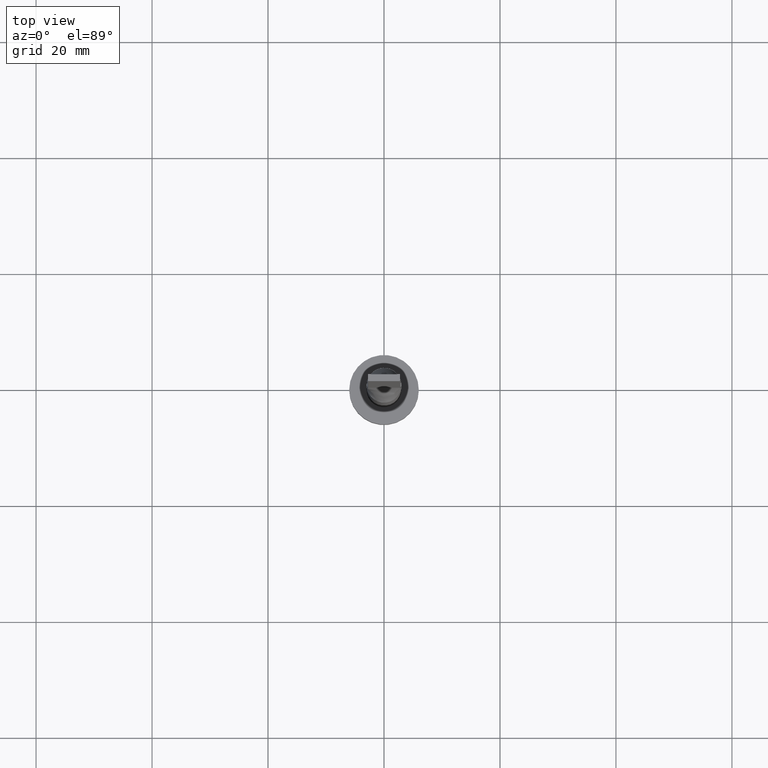
[diagram: clean part render]
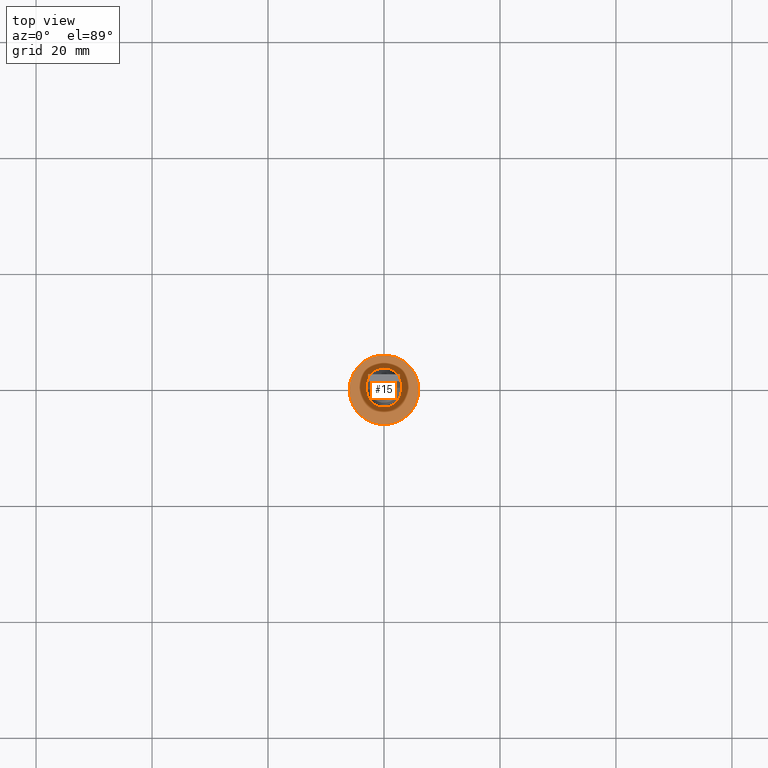
[diagram: same view with one face highlighted and labeled with its STEP entity id]
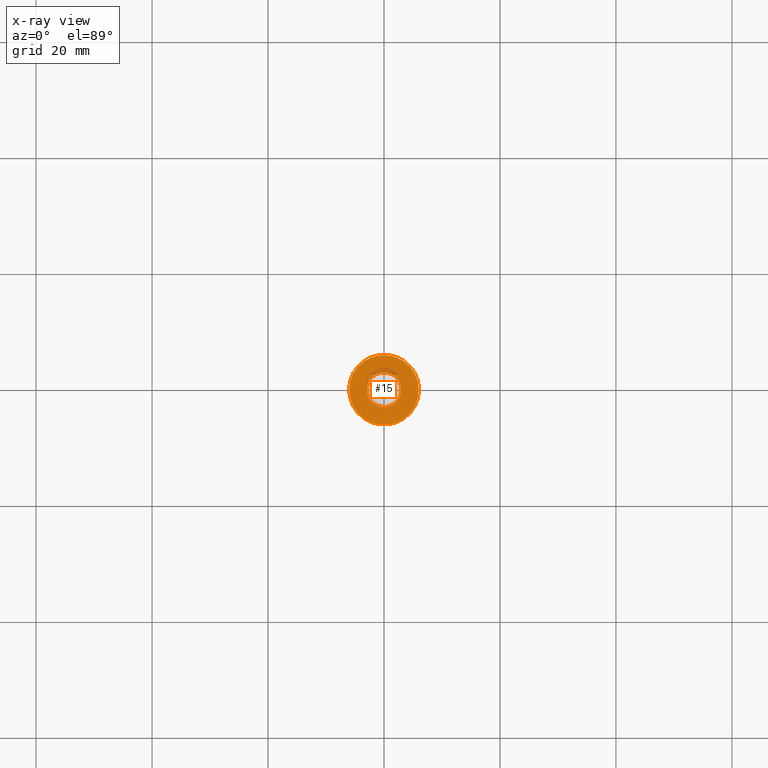
[diagram: x-ray of the same camera — body ghosted, the highlighted face saturated]
A machine part, top view. The second image highlights one B-rep face of the part: STEP entity #15.
The next image is the same camera in x-ray: the body ghosted, the highlighted face saturated — about 6% of this face is hidden behind the body in this view.
In plain terms, the highlighted planar face has unit normal (0, 0, 1).
Its self-contained STEP definition (entity closure, byte-faithful):
#13 = CIRCLE ( 'NONE', #415, 6.000000000000000888 ) ;
#15 = ADVANCED_FACE ( 'NONE', ( #383, #340 ), #239, .T. ) ;
#30 = DIRECTION ( 'NONE',  ( 0.000000000000000000, 0.000000000000000000, 1.000000000000000000 ) ) ;
#38 = AXIS2_PLACEMENT_3D ( 'NONE', #245, #526, #441 ) ;
#49 = ORIENTED_EDGE ( 'NONE', *, *, #198, .F. ) ;
#63 = EDGE_CURVE ( 'NONE', #509, #465, #13, .T. ) ;
#112 = DIRECTION ( 'NONE',  ( 0.000000000000000000, 0.000000000000000000, 1.000000000000000000 ) ) ;
#120 = DIRECTION ( 'NONE',  ( 0.000000000000000000, 0.000000000000000000, 1.000000000000000000 ) ) ;
#141 = CARTESIAN_POINT ( 'NONE',  ( -6.000000000000000888, 0.000000000000000000, 5.000000000000000000 ) ) ;
#147 = DIRECTION ( 'NONE',  ( 1.000000000000000000, 0.000000000000000000, 0.000000000000000000 ) ) ;
#180 = EDGE_LOOP ( 'NONE', ( #49, #336 ) ) ;
#188 = CIRCLE ( 'NONE', #537, 3.000000000000000444 ) ;
#198 = EDGE_CURVE ( 'NONE', #508, #240, #188, .T. ) ;
#218 = DIRECTION ( 'NONE',  ( 1.000000000000000000, 0.000000000000000000, 0.000000000000000000 ) ) ;
#239 = PLANE ( 'NONE',  #309 ) ;
#240 = VERTEX_POINT ( 'NONE', #325 ) ;
#245 = CARTESIAN_POINT ( 'NONE',  ( 0.000000000000000000, 0.000000000000000000, 5.000000000000000000 ) ) ;
#253 = AXIS2_PLACEMENT_3D ( 'NONE', #298, #30, #467 ) ;
#264 = DIRECTION ( 'NONE',  ( 0.000000000000000000, 0.000000000000000000, 1.000000000000000000 ) ) ;
#290 = ORIENTED_EDGE ( 'NONE', *, *, #363, .T. ) ;
#298 = CARTESIAN_POINT ( 'NONE',  ( 0.000000000000000000, 0.000000000000000000, 5.000000000000000000 ) ) ;
#309 = AXIS2_PLACEMENT_3D ( 'NONE', #518, #112, #470 ) ;
#325 = CARTESIAN_POINT ( 'NONE',  ( 3.000000000000000444, 3.673940397442059868E-16, 5.000000000000000000 ) ) ;
#336 = ORIENTED_EDGE ( 'NONE', *, *, #377, .F. ) ;
#340 = FACE_OUTER_BOUND ( 'NONE', #512, .T. ) ;
#363 = EDGE_CURVE ( 'NONE', #465, #509, #546, .T. ) ;
#377 = EDGE_CURVE ( 'NONE', #240, #508, #495, .T. ) ;
#383 = FACE_BOUND ( 'NONE', #180, .T. ) ;
#387 = CARTESIAN_POINT ( 'NONE',  ( 0.000000000000000000, 0.000000000000000000, 5.000000000000000000 ) ) ;
#415 = AXIS2_PLACEMENT_3D ( 'NONE', #490, #264, #218 ) ;
#436 = CARTESIAN_POINT ( 'NONE',  ( 6.000000000000000888, 7.347880794884120722E-16, 5.000000000000000000 ) ) ;
#441 = DIRECTION ( 'NONE',  ( 1.000000000000000000, 0.000000000000000000, 0.000000000000000000 ) ) ;
#456 = CARTESIAN_POINT ( 'NONE',  ( -3.000000000000000444, 0.000000000000000000, 5.000000000000000000 ) ) ;
#465 = VERTEX_POINT ( 'NONE', #436 ) ;
#467 = DIRECTION ( 'NONE',  ( 1.000000000000000000, 0.000000000000000000, 0.000000000000000000 ) ) ;
#469 = ORIENTED_EDGE ( 'NONE', *, *, #63, .T. ) ;
#470 = DIRECTION ( 'NONE',  ( 1.000000000000000000, 0.000000000000000000, -0.000000000000000000 ) ) ;
#490 = CARTESIAN_POINT ( 'NONE',  ( 0.000000000000000000, 0.000000000000000000, 5.000000000000000000 ) ) ;
#495 = CIRCLE ( 'NONE', #253, 3.000000000000000444 ) ;
#508 = VERTEX_POINT ( 'NONE', #456 ) ;
#509 = VERTEX_POINT ( 'NONE', #141 ) ;
#512 = EDGE_LOOP ( 'NONE', ( #469, #290 ) ) ;
#518 = CARTESIAN_POINT ( 'NONE',  ( 0.000000000000000000, 0.000000000000000000, 5.000000000000000000 ) ) ;
#526 = DIRECTION ( 'NONE',  ( 0.000000000000000000, 0.000000000000000000, 1.000000000000000000 ) ) ;
#537 = AXIS2_PLACEMENT_3D ( 'NONE', #387, #120, #147 ) ;
#546 = CIRCLE ( 'NONE', #38, 6.000000000000000888 ) ;